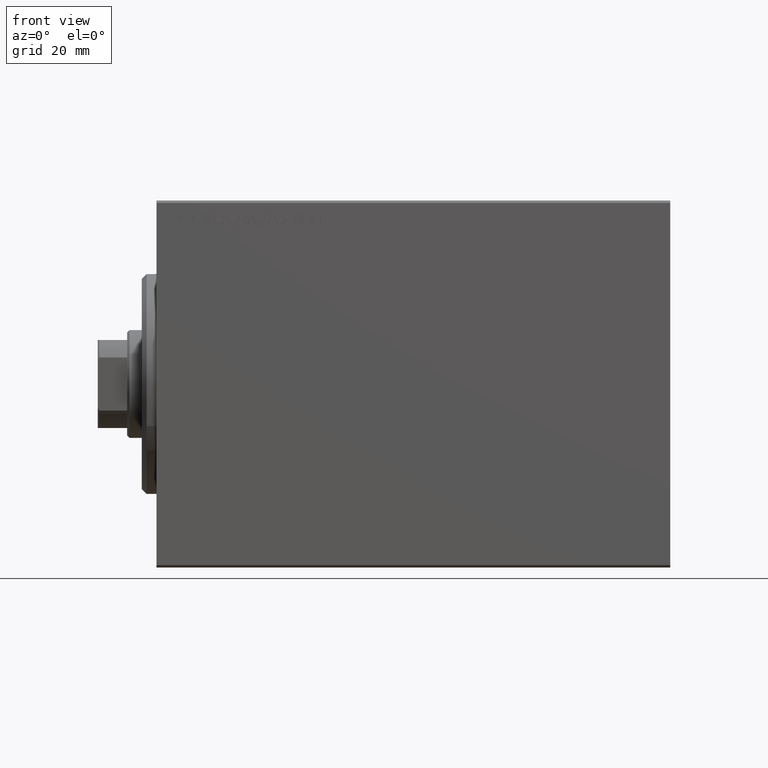
[diagram: clean part render]
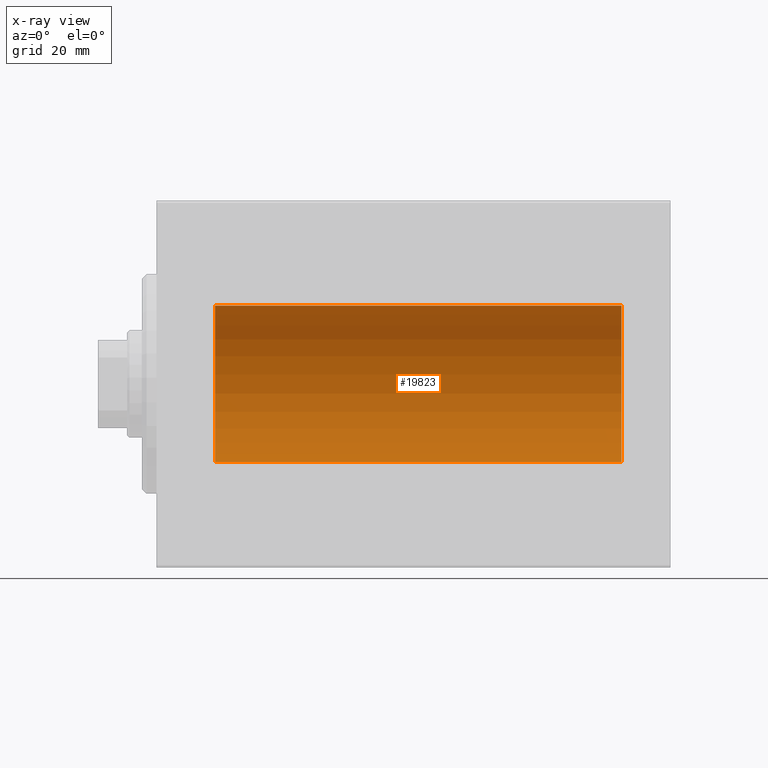
[diagram: x-ray — body ghosted, one internal face saturated and labeled with its STEP entity id]
A machine part, front view, then the same camera in x-ray: the body is ghosted and one INTERNAL B-rep face — a face not visible from any outside direction — is saturated and labeled: STEP entity #19823.
In plain terms, the highlighted cylindrical surface (partial cylindrical patch) has radius 16 mm, axis along (-1, -0, -0).
Its self-contained STEP definition (entity closure, byte-faithful):
#303 = LINE ( 'NONE', #34447, #30923 ) ;
#509 = EDGE_CURVE ( 'NONE', #25070, #6644, #303, .T. ) ;
#1211 = CARTESIAN_POINT ( 'NONE',  ( 95.00000000000000000, 0.000000000000000000, 16.00000000000000000 ) ) ;
#1431 = DIRECTION ( 'NONE',  ( -1.000000000000000000, -0.000000000000000000, -0.000000000000000000 ) ) ;
#2955 = EDGE_CURVE ( 'NONE', #9939, #25070, #38756, .T. ) ;
#3463 = ORIENTED_EDGE ( 'NONE', *, *, #509, .F. ) ;
#3857 = DIRECTION ( 'NONE',  ( 0.000000000000000000, 0.000000000000000000, 1.000000000000000000 ) ) ;
#4189 = CARTESIAN_POINT ( 'NONE',  ( 11.99999999999999645, 0.000000000000000000, 16.00000000000000000 ) ) ;
#5696 = AXIS2_PLACEMENT_3D ( 'NONE', #28552, #32517, #15778 ) ;
#6644 = VERTEX_POINT ( 'NONE', #21785 ) ;
#8802 = DIRECTION ( 'NONE',  ( -1.000000000000000000, 0.000000000000000000, 0.000000000000000000 ) ) ;
#9939 = VERTEX_POINT ( 'NONE', #23662 ) ;
#11351 = LINE ( 'NONE', #1211, #12319 ) ;
#11669 = DIRECTION ( 'NONE',  ( 0.000000000000000000, 0.000000000000000000, 1.000000000000000000 ) ) ;
#12319 = VECTOR ( 'NONE', #1431, 1000.000000000000000 ) ;
#13624 = ORIENTED_EDGE ( 'NONE', *, *, #42099, .T. ) ;
#14211 = FACE_OUTER_BOUND ( 'NONE', #27389, .T. ) ;
#14412 = DIRECTION ( 'NONE',  ( -1.000000000000000000, -0.000000000000000000, -0.000000000000000000 ) ) ;
#15778 = DIRECTION ( 'NONE',  ( 0.000000000000000000, 0.000000000000000000, 1.000000000000000000 ) ) ;
#19823 = ADVANCED_FACE ( 'NONE', ( #14211 ), #27641, .F. ) ;
#21257 = CARTESIAN_POINT ( 'NONE',  ( 95.00000000000000000, 0.000000000000000000, 0.000000000000000000 ) ) ;
#21785 = CARTESIAN_POINT ( 'NONE',  ( 11.99999999999999645, 1.959434878635765131E-15, -16.00000000000000000 ) ) ;
#22690 = VERTEX_POINT ( 'NONE', #4189 ) ;
#22748 = ORIENTED_EDGE ( 'NONE', *, *, #25576, .T. ) ;
#23662 = CARTESIAN_POINT ( 'NONE',  ( 95.00000000000000000, 0.000000000000000000, 16.00000000000000000 ) ) ;
#25070 = VERTEX_POINT ( 'NONE', #30395 ) ;
#25368 = CIRCLE ( 'NONE', #5696, 16.00000000000000000 ) ;
#25548 = CARTESIAN_POINT ( 'NONE',  ( 95.00000000000000000, 0.000000000000000000, 0.000000000000000000 ) ) ;
#25576 = EDGE_CURVE ( 'NONE', #22690, #6644, #25368, .T. ) ;
#27389 = EDGE_LOOP ( 'NONE', ( #3463, #41978, #13624, #22748 ) ) ;
#27641 = CYLINDRICAL_SURFACE ( 'NONE', #37217, 16.00000000000000000 ) ;
#28175 = AXIS2_PLACEMENT_3D ( 'NONE', #25548, #8802, #11669 ) ;
#28552 = CARTESIAN_POINT ( 'NONE',  ( 11.99999999999999645, 0.000000000000000000, 0.000000000000000000 ) ) ;
#30395 = CARTESIAN_POINT ( 'NONE',  ( 95.00000000000000000, 1.959434878635765131E-15, -16.00000000000000000 ) ) ;
#30923 = VECTOR ( 'NONE', #14412, 1000.000000000000000 ) ;
#31173 = DIRECTION ( 'NONE',  ( -1.000000000000000000, -0.000000000000000000, -0.000000000000000000 ) ) ;
#32517 = DIRECTION ( 'NONE',  ( -1.000000000000000000, 0.000000000000000000, 0.000000000000000000 ) ) ;
#34447 = CARTESIAN_POINT ( 'NONE',  ( 95.00000000000000000, 1.959434878635765131E-15, -16.00000000000000000 ) ) ;
#37217 = AXIS2_PLACEMENT_3D ( 'NONE', #21257, #31173, #3857 ) ;
#38756 = CIRCLE ( 'NONE', #28175, 16.00000000000000000 ) ;
#41978 = ORIENTED_EDGE ( 'NONE', *, *, #2955, .F. ) ;
#42099 = EDGE_CURVE ( 'NONE', #9939, #22690, #11351, .T. ) ;